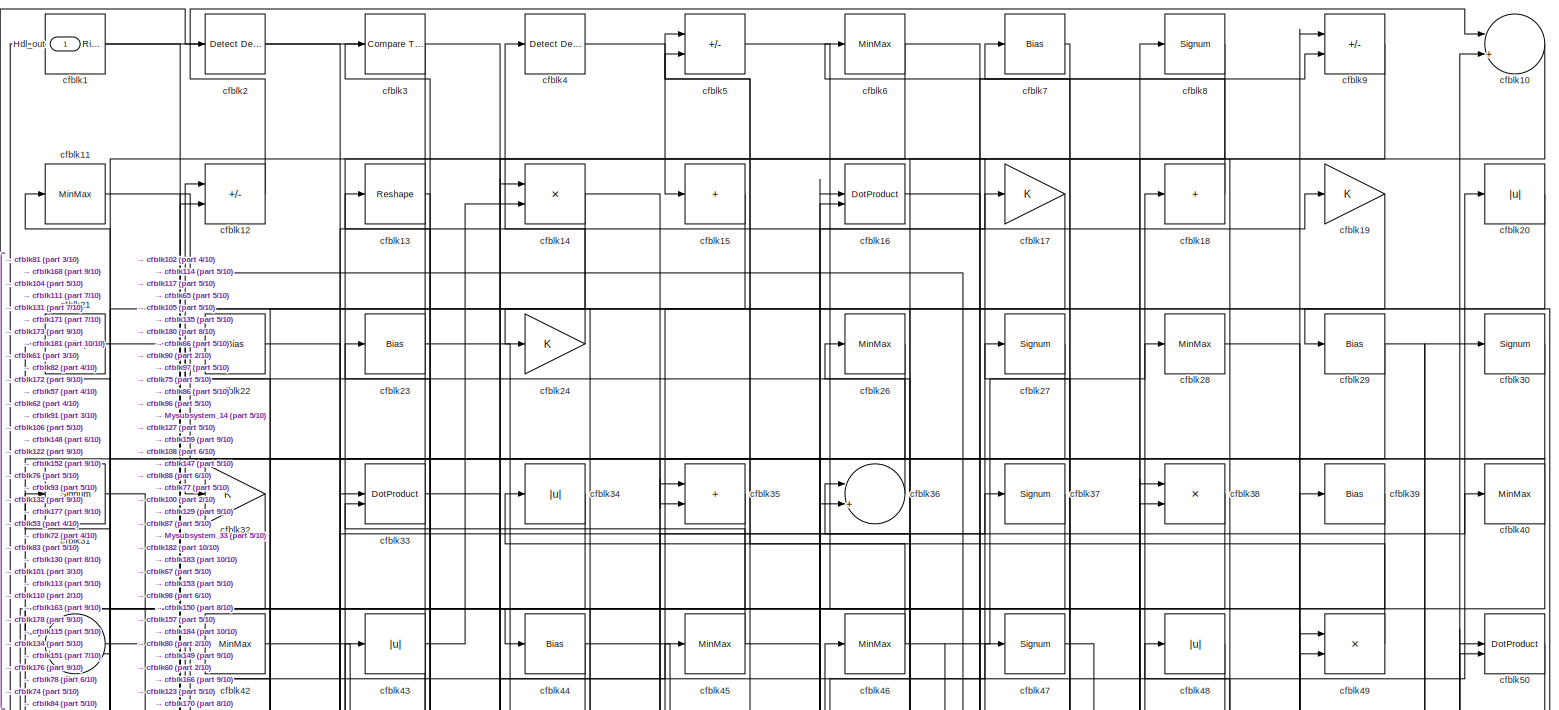
[diagram: root canvas - part 1/10, full width, top band]
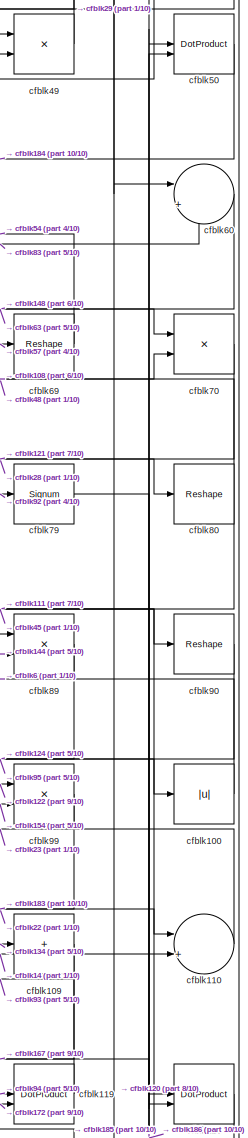
[diagram: root canvas - part 2/10, middle right region]
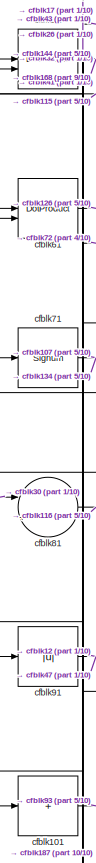
[diagram: root canvas - part 3/10, middle left region]
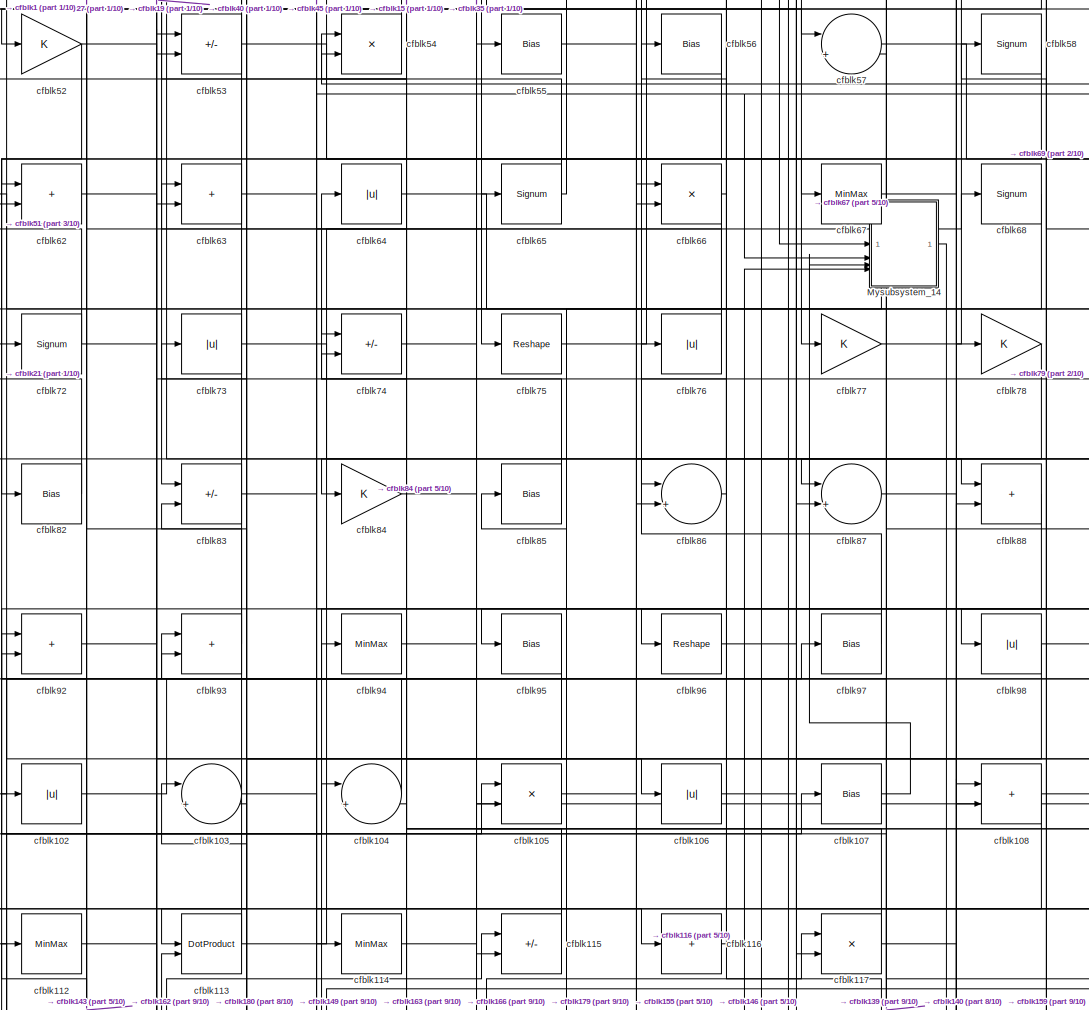
[diagram: root canvas - part 4/10, central region]
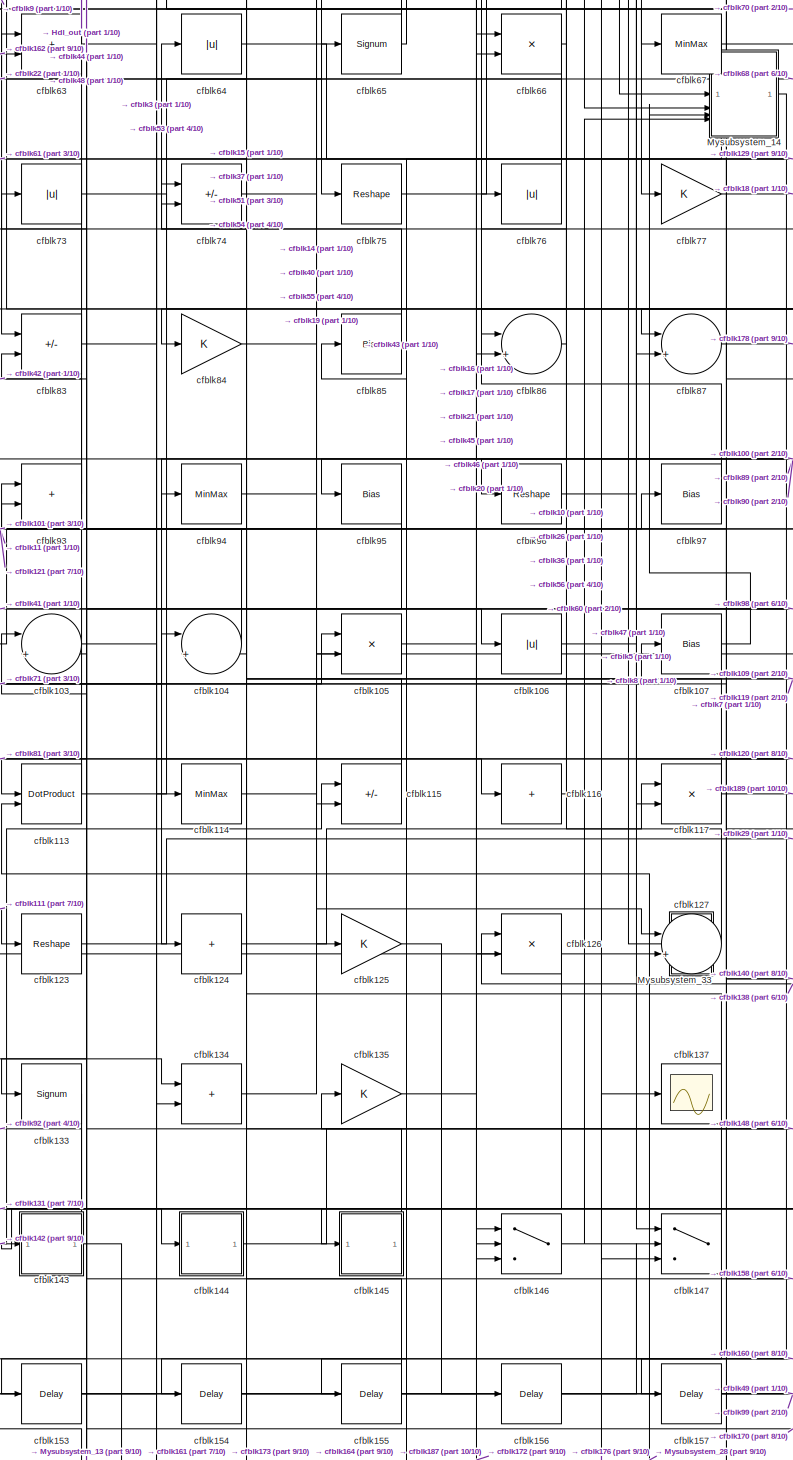
[diagram: root canvas - part 5/10, central region]
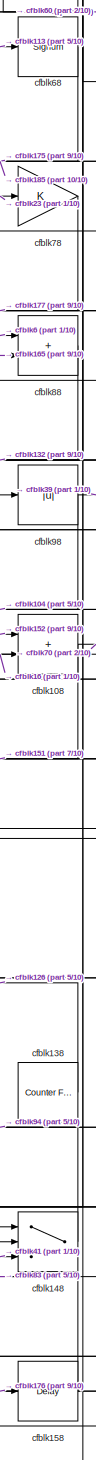
[diagram: root canvas - part 6/10, middle right region]
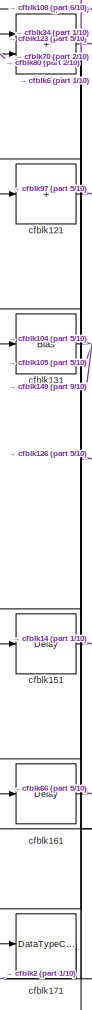
[diagram: root canvas - part 7/10, bottom left region]
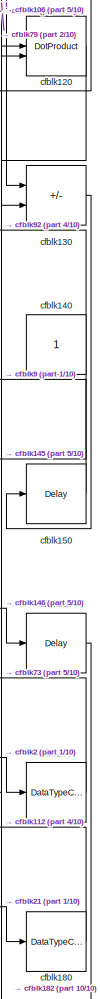
[diagram: root canvas - part 8/10, bottom right region]
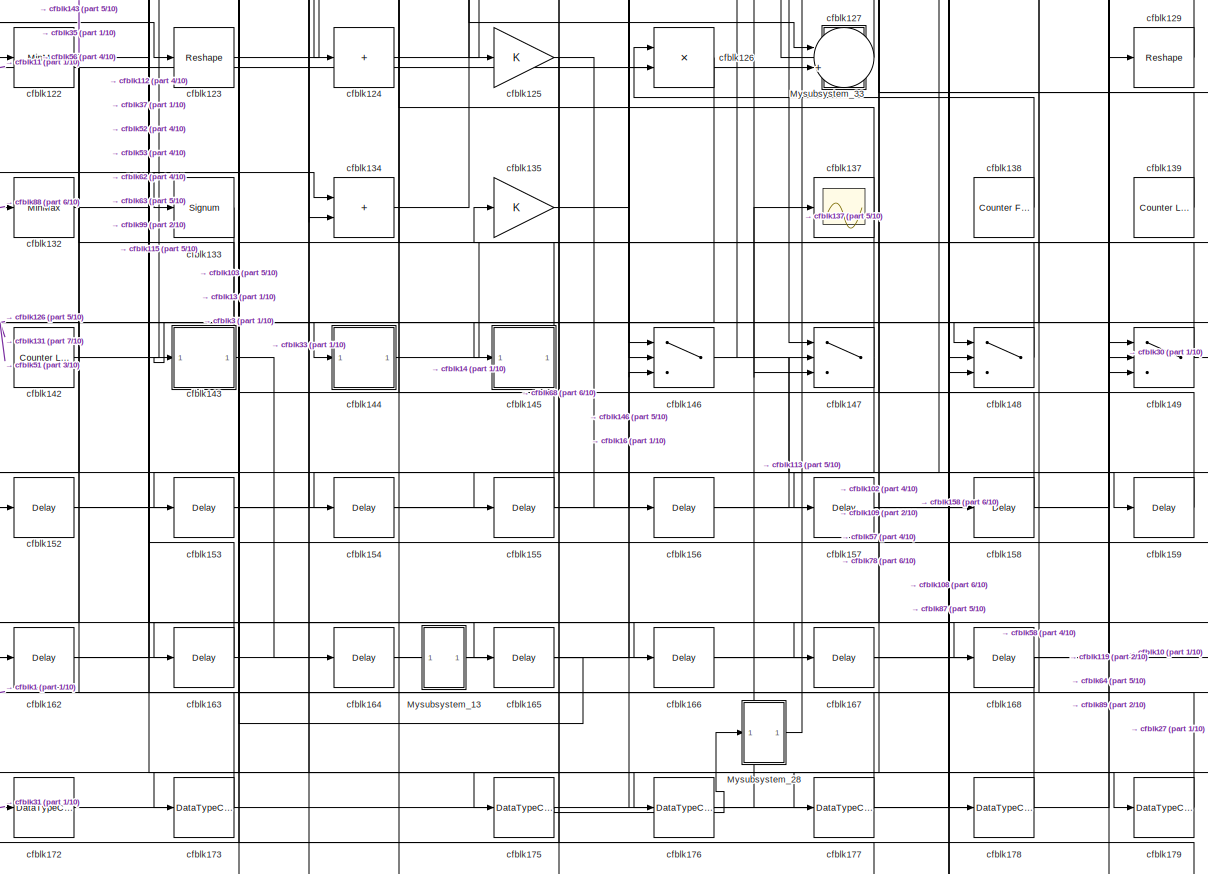
[diagram: root canvas - part 9/10, full width, bottom band]
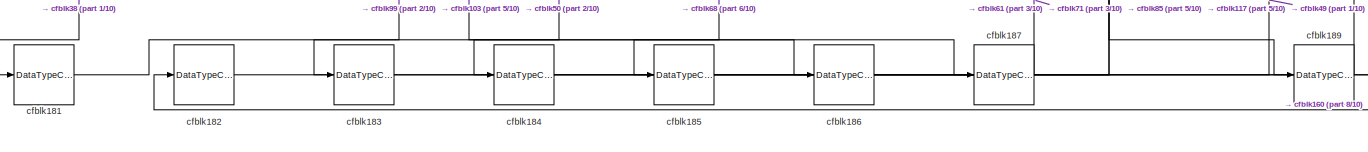
[diagram: root canvas - part 10/10, full width, bottom band]
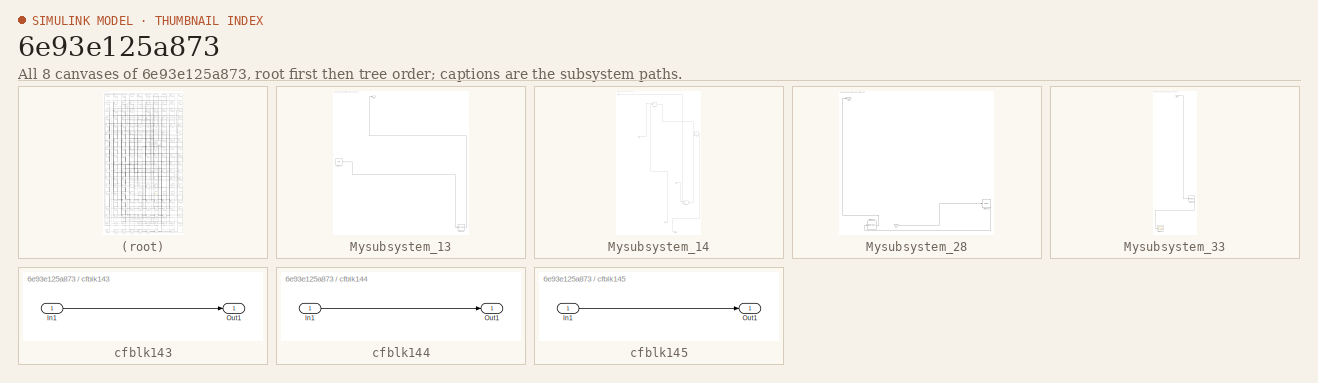
[diagram: thumbnail index - all 8 canvases of the model, root first then tree order]
MODEL slx_6e93e125a873
KIND model
CONFIG AbsTol = auto
CONFIG EnableMultiTasking = off
CONFIG FixedStep = auto
CONFIG MaxStep = auto
CONFIG MinStep = auto
CONFIG RelTol = 1e-3
CONFIG SampleTimeConstraint = Unconstrained
CONFIG SolverName = VariableStepAuto
CONFIG StartTime = 0.0
CONFIG StopTime = 10.0
BLOCK [Outport] Hdl_out
  OutDataTypeStr = uint8
BLOCK [SubSystem] Mysubsystem_13
  RTWFcnName = Mysubsystem_13
  RTWFcnNameOpts = User specified
  RTWFileNameOpts = Use function name
  RTWSystemCode = Reusable function
  TreatAsAtomicUnit = on
BLOCK [Outport] Mysubsystem_13/Out1
BLOCK [Ground] Mysubsystem_13/cfblk141
BLOCK [DataTypeConversion] Mysubsystem_13/cfblk188
  OutDataTypeStr = uint8
  RndMeth = Floor
  SaturateOnIntegerOverflow = off
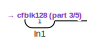
[diagram: Mysubsystem_14 - part 1/5, top left region]
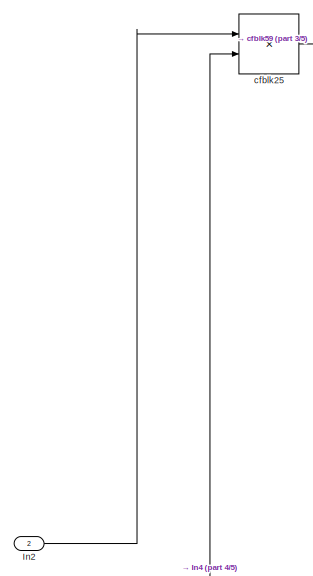
[diagram: Mysubsystem_14 - part 2/5, top center region]
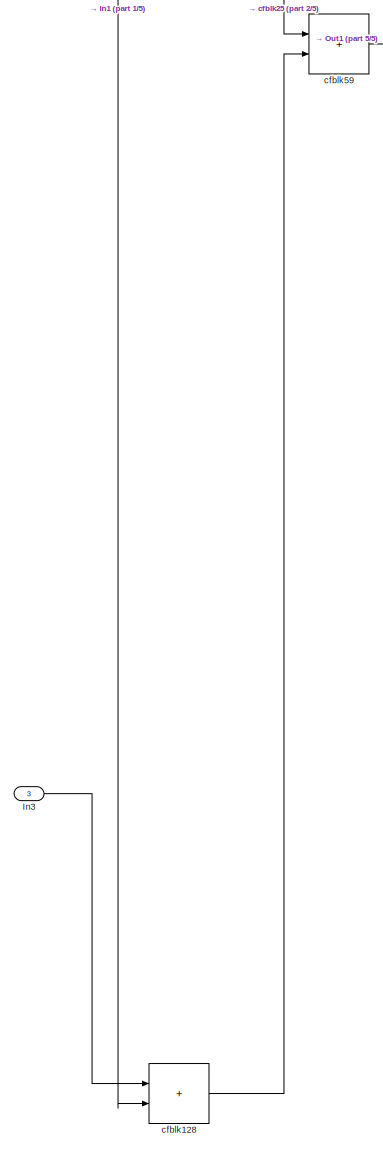
[diagram: Mysubsystem_14 - part 3/5, middle right region]
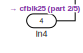
[diagram: Mysubsystem_14 - part 4/5, bottom center region]
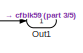
[diagram: Mysubsystem_14 - part 5/5, bottom right region]
BLOCK [SubSystem] Mysubsystem_14
  RTWFcnName = Mysubsystem_14
  RTWFcnNameOpts = User specified
  RTWFileNameOpts = Use function name
  RTWSystemCode = Reusable function
  TreatAsAtomicUnit = on
BLOCK [Inport] Mysubsystem_14/In1
BLOCK [Inport] Mysubsystem_14/In2
  Port = 2
BLOCK [Inport] Mysubsystem_14/In3
  Port = 3
BLOCK [Inport] Mysubsystem_14/In4
  Port = 4
BLOCK [Outport] Mysubsystem_14/Out1
BLOCK [Sum] Mysubsystem_14/cfblk128
  IconShape = rectangular
BLOCK [Product] Mysubsystem_14/cfblk25
  Inputs = */
  RndMeth = Zero
  SaturateOnIntegerOverflow = on
BLOCK [Sum] Mysubsystem_14/cfblk59
  IconShape = rectangular
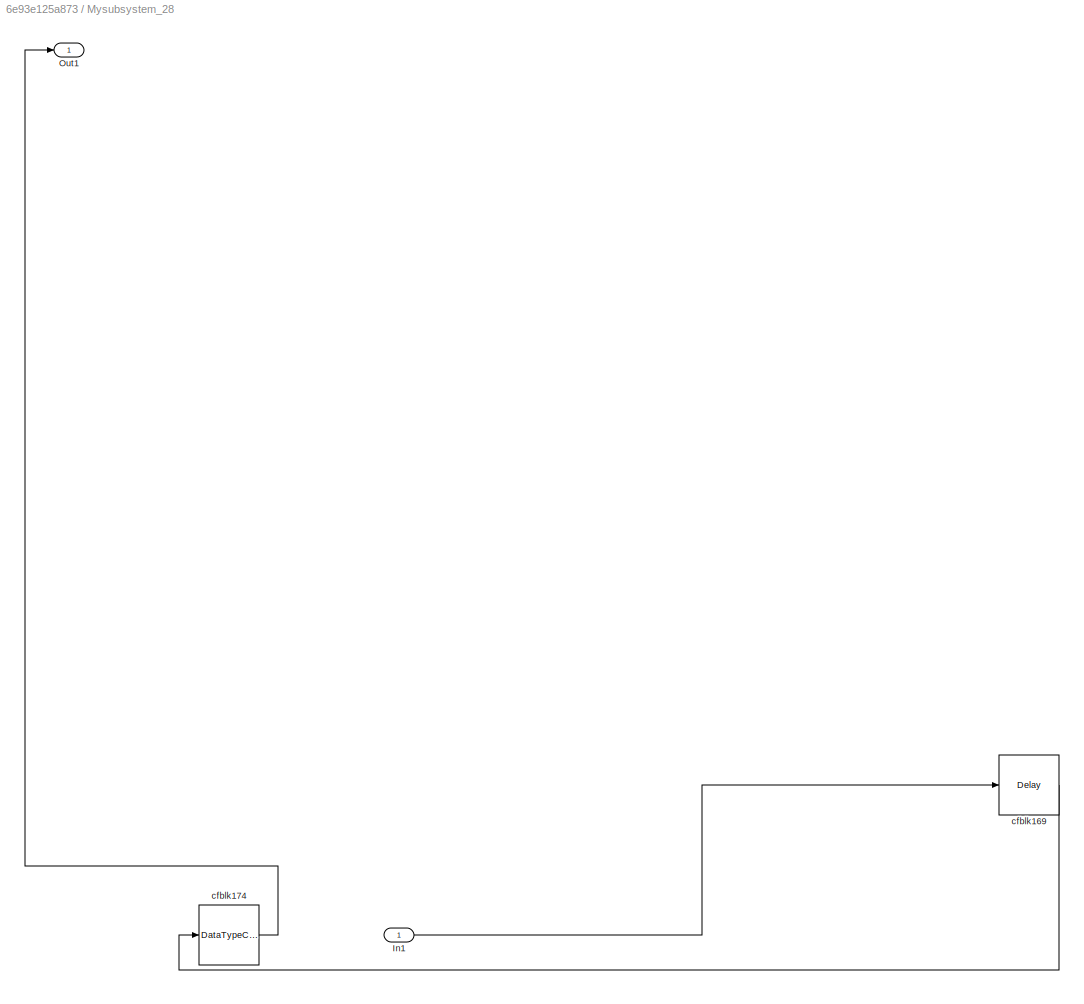
BLOCK [SubSystem] Mysubsystem_28
  RTWFcnName = Mysubsystem_28
  RTWFcnNameOpts = User specified
  RTWFileNameOpts = Use function name
  RTWSystemCode = Reusable function
  TreatAsAtomicUnit = on
BLOCK [Inport] Mysubsystem_28/In1
BLOCK [Outport] Mysubsystem_28/Out1
BLOCK [Delay] Mysubsystem_28/cfblk169
  InputPortMap = u0
  SampleTime = 1
BLOCK [DataTypeConversion] Mysubsystem_28/cfblk174
  OutDataTypeStr = uint8
  RndMeth = Floor
  SaturateOnIntegerOverflow = off
BLOCK [SubSystem] Mysubsystem_33
  RTWFcnName = Mysubsystem_33
  RTWFcnNameOpts = User specified
  RTWFileNameOpts = Use function name
  RTWSystemCode = Reusable function
  TreatAsAtomicUnit = on
BLOCK [Inport] Mysubsystem_33/In1
BLOCK [MinMax] Mysubsystem_33/cfblk118
BLOCK [Scope] Mysubsystem_33/cfblk136
  Floating = off
  NumInputPorts = 1
  ScopeSpecificationString = Simulink.scopes.TimeScopeBlockCfg('CurrentConfiguration', extmgr.ConfigurationSet(extmgr.Configuration('Core','General UI',true),extmgr.Configuration('Core','Source UI',true),extmgr.Configuration('Sources','WiredSimulink',true,'DataLoggingVariableName','ScopeData2','DataLoggingSaveFormat','Array','DataLoggingLimitDataPoints',true,'DataLoggingDecimation','1'),extmgr.Configuration('Visuals','Time Do...<+868ch>
BLOCK [Reference] cfblk1  REF=hdlsllib/Logic and Bit
Operations/Detect Rise
Positive
  SourceBlock = hdlsllib/Logic and Bit\nOperations/Detect Rise\nPositive
  SourceType = Detect Rise Positive
BLOCK [Sum] cfblk10
  Inputs = |++
  OutDataTypeStr = uint8
BLOCK [Abs] cfblk100
  OutDataTypeStr = uint8
  SaturateOnIntegerOverflow = off
BLOCK [Sum] cfblk101
  IconShape = rectangular
  Inputs = +
  OutDataTypeStr = uint8
BLOCK [Abs] cfblk102
  OutDataTypeStr = uint8
  SaturateOnIntegerOverflow = off
BLOCK [Sum] cfblk103
  Inputs = |++
  OutDataTypeStr = uint8
BLOCK [Sum] cfblk104
  Inputs = |++
  OutDataTypeStr = uint8
BLOCK [Product] cfblk105
  Inputs = */
  OutDataTypeStr = uint8
  RndMeth = Zero
  SaturateOnIntegerOverflow = on
BLOCK [Abs] cfblk106
  OutDataTypeStr = uint8
  SaturateOnIntegerOverflow = off
BLOCK [Bias] cfblk107
  Bias = 0.0
  SaturateOnIntegerOverflow = off
BLOCK [Sum] cfblk108
  IconShape = rectangular
  OutDataTypeStr = uint8
BLOCK [Sum] cfblk109
  IconShape = rectangular
  Inputs = +
  OutDataTypeStr = uint8
BLOCK [MinMax] cfblk11
  OutDataTypeStr = uint8
BLOCK [Sum] cfblk110
  Inputs = |++
  OutDataTypeStr = uint8
BLOCK [Sum] cfblk111
  IconShape = rectangular
  OutDataTypeStr = uint8
BLOCK [MinMax] cfblk112
  OutDataTypeStr = uint8
BLOCK [DotProduct] cfblk113
  OutDataTypeStr = uint8
BLOCK [MinMax] cfblk114
  OutDataTypeStr = uint8
BLOCK [Sum] cfblk115
  IconShape = rectangular
  Inputs = +-
  OutDataTypeStr = uint8
BLOCK [Sum] cfblk116
  IconShape = rectangular
  Inputs = +
  OutDataTypeStr = uint8
BLOCK [Product] cfblk117
  Inputs = */
  OutDataTypeStr = uint8
  RndMeth = Zero
  SaturateOnIntegerOverflow = on
BLOCK [DotProduct] cfblk119
  OutDataTypeStr = uint8
BLOCK [Sum] cfblk12
  IconShape = rectangular
  Inputs = +-
  OutDataTypeStr = uint8
BLOCK [DotProduct] cfblk120
  OutDataTypeStr = uint8
BLOCK [Sum] cfblk121
  IconShape = rectangular
  Inputs = +
  OutDataTypeStr = uint8
BLOCK [MinMax] cfblk122
  OutDataTypeStr = uint8
BLOCK [Reshape] cfblk123
BLOCK [Sum] cfblk124
  IconShape = rectangular
  Inputs = +
  OutDataTypeStr = uint8
BLOCK [Gain] cfblk125
  OutDataTypeStr = uint8
BLOCK [Product] cfblk126
  Inputs = */
  OutDataTypeStr = uint8
  RndMeth = Zero
  SaturateOnIntegerOverflow = on
BLOCK [Sum] cfblk127
  Inputs = |++
  OutDataTypeStr = uint8
BLOCK [Reshape] cfblk129
BLOCK [Reshape] cfblk13
BLOCK [Sum] cfblk130
  IconShape = rectangular
  Inputs = +-
  OutDataTypeStr = uint8
BLOCK [Bias] cfblk131
  Bias = 0.0
  SaturateOnIntegerOverflow = off
BLOCK [MinMax] cfblk132
  OutDataTypeStr = uint8
BLOCK [Signum] cfblk133
BLOCK [Sum] cfblk134
  IconShape = rectangular
  OutDataTypeStr = uint8
BLOCK [Gain] cfblk135
  OutDataTypeStr = uint8
BLOCK [Scope] cfblk137
  Floating = off
  NumInputPorts = 1
  ScopeSpecificationString = Simulink.scopes.TimeScopeBlockCfg('CurrentConfiguration', extmgr.ConfigurationSet(extmgr.Configuration('Core','General UI',true),extmgr.Configuration('Core','Source UI',true),extmgr.Configuration('Sources','WiredSimulink',true,'DataLoggingVariableName','ScopeData2','DataLoggingSaveFormat','Array','DataLoggingLimitDataPoints',true,'DataLoggingDecimation','1'),extmgr.Configuration('Visuals','Time Do...<+868ch>
BLOCK [Reference] cfblk138  REF=hdlsllib/Sources/Counter
Free-Running
  SourceBlock = hdlsllib/Sources/Counter\nFree-Running
  SourceType = Counter Free-Running
BLOCK [Reference] cfblk139  REF=hdlsllib/Sources/Counter
Limited
  SourceBlock = hdlsllib/Sources/Counter\nLimited
  SourceType = Counter Limited
BLOCK [Product] cfblk14
  Inputs = */
  OutDataTypeStr = uint8
  RndMeth = Zero
  SaturateOnIntegerOverflow = on
BLOCK [Constant] cfblk140
  OutDataTypeStr = uint8
  SampleTime = -1
BLOCK [Reference] cfblk142  REF=hdlsllib/Sources/Counter
Limited
  SourceBlock = hdlsllib/Sources/Counter\nLimited
  SourceType = Counter Limited
BLOCK [SubSystem] cfblk143
  LibrarySourceBlock = hdlsllib/Ports &\nSubsystems/Subsystem
BLOCK [Inport] cfblk143/In1
BLOCK [Outport] cfblk143/Out1
BLOCK [SubSystem] cfblk144
  LibrarySourceBlock = hdlsllib/Ports &\nSubsystems/Subsystem
BLOCK [Inport] cfblk144/In1
BLOCK [Outport] cfblk144/Out1
BLOCK [SubSystem] cfblk145
  LibrarySourceBlock = hdlsllib/Ports &\nSubsystems/Subsystem
BLOCK [Inport] cfblk145/In1
BLOCK [Outport] cfblk145/Out1
BLOCK [Switch] cfblk146
  InputSameDT = off
  OutDataTypeStr = uint8
  SaturateOnIntegerOverflow = off
BLOCK [Switch] cfblk147
  InputSameDT = off
  OutDataTypeStr = uint8
  SaturateOnIntegerOverflow = off
BLOCK [Switch] cfblk148
  InputSameDT = off
  OutDataTypeStr = uint8
  SaturateOnIntegerOverflow = off
BLOCK [Switch] cfblk149
  InputSameDT = off
  OutDataTypeStr = uint8
  SaturateOnIntegerOverflow = off
BLOCK [Sum] cfblk15
  IconShape = rectangular
  Inputs = +
  OutDataTypeStr = uint8
BLOCK [Delay] cfblk150
  InputPortMap = u0
  SampleTime = 1
BLOCK [Delay] cfblk151
  InputPortMap = u0
  SampleTime = 1
BLOCK [Delay] cfblk152
  InputPortMap = u0
  SampleTime = 1
BLOCK [Delay] cfblk153
  InputPortMap = u0
  SampleTime = 1
BLOCK [Delay] cfblk154
  InputPortMap = u0
  SampleTime = 1
BLOCK [Delay] cfblk155
  InputPortMap = u0
  SampleTime = 1
BLOCK [Delay] cfblk156
  InputPortMap = u0
  SampleTime = 1
BLOCK [Delay] cfblk157
  InputPortMap = u0
  SampleTime = 1
BLOCK [Delay] cfblk158
  InputPortMap = u0
  SampleTime = 1
BLOCK [Delay] cfblk159
  InputPortMap = u0
  SampleTime = 1
BLOCK [DotProduct] cfblk16
  OutDataTypeStr = uint8
BLOCK [Delay] cfblk160
  InputPortMap = u0
  SampleTime = 1
BLOCK [Delay] cfblk161
  InputPortMap = u0
  SampleTime = 1
BLOCK [Delay] cfblk162
  InputPortMap = u0
  SampleTime = 1
BLOCK [Delay] cfblk163
  InputPortMap = u0
  SampleTime = 1
BLOCK [Delay] cfblk164
  InputPortMap = u0
  SampleTime = 1
BLOCK [Delay] cfblk165
  InputPortMap = u0
  SampleTime = 1
BLOCK [Delay] cfblk166
  InputPortMap = u0
  SampleTime = 1
BLOCK [Delay] cfblk167
  InputPortMap = u0
  SampleTime = 1
BLOCK [Delay] cfblk168
  InputPortMap = u0
  SampleTime = 1
BLOCK [Gain] cfblk17
  OutDataTypeStr = uint8
BLOCK [DataTypeConversion] cfblk170
  OutDataTypeStr = uint8
  RndMeth = Floor
  SaturateOnIntegerOverflow = off
BLOCK [DataTypeConversion] cfblk171
  OutDataTypeStr = uint8
  RndMeth = Floor
  SaturateOnIntegerOverflow = off
BLOCK [DataTypeConversion] cfblk172
  OutDataTypeStr = uint8
  RndMeth = Floor
  SaturateOnIntegerOverflow = off
BLOCK [DataTypeConversion] cfblk173
  OutDataTypeStr = uint8
  RndMeth = Floor
  SaturateOnIntegerOverflow = off
BLOCK [DataTypeConversion] cfblk175
  OutDataTypeStr = uint8
  RndMeth = Floor
  SaturateOnIntegerOverflow = off
BLOCK [DataTypeConversion] cfblk176
  OutDataTypeStr = uint8
  RndMeth = Floor
  SaturateOnIntegerOverflow = off
BLOCK [DataTypeConversion] cfblk177
  OutDataTypeStr = uint8
  RndMeth = Floor
  SaturateOnIntegerOverflow = off
BLOCK [DataTypeConversion] cfblk178
  OutDataTypeStr = uint8
  RndMeth = Floor
  SaturateOnIntegerOverflow = off
BLOCK [DataTypeConversion] cfblk179
  OutDataTypeStr = uint8
  RndMeth = Floor
  SaturateOnIntegerOverflow = off
BLOCK [Sum] cfblk18
  IconShape = rectangular
  Inputs = +
  OutDataTypeStr = uint8
BLOCK [DataTypeConversion] cfblk180
  OutDataTypeStr = uint8
  RndMeth = Floor
  SaturateOnIntegerOverflow = off
BLOCK [DataTypeConversion] cfblk181
  OutDataTypeStr = uint8
  RndMeth = Floor
  SaturateOnIntegerOverflow = off
BLOCK [DataTypeConversion] cfblk182
  OutDataTypeStr = uint8
  RndMeth = Floor
  SaturateOnIntegerOverflow = off
BLOCK [DataTypeConversion] cfblk183
  OutDataTypeStr = uint8
  RndMeth = Floor
  SaturateOnIntegerOverflow = off
BLOCK [DataTypeConversion] cfblk184
  OutDataTypeStr = uint8
  RndMeth = Floor
  SaturateOnIntegerOverflow = off
BLOCK [DataTypeConversion] cfblk185
  OutDataTypeStr = uint8
  RndMeth = Floor
  SaturateOnIntegerOverflow = off
BLOCK [DataTypeConversion] cfblk186
  OutDataTypeStr = uint8
  RndMeth = Floor
  SaturateOnIntegerOverflow = off
BLOCK [DataTypeConversion] cfblk187
  OutDataTypeStr = uint8
  RndMeth = Floor
  SaturateOnIntegerOverflow = off
BLOCK [DataTypeConversion] cfblk189
  OutDataTypeStr = uint8
  RndMeth = Floor
  SaturateOnIntegerOverflow = off
BLOCK [Gain] cfblk19
  OutDataTypeStr = uint8
BLOCK [Reference] cfblk2  REF=simulink/Logic and Bit
Operations/Detect
Decrease
  LibrarySourceBlock = hdlsllib/Logic and Bit\nOperations/Detect\nDecrease
  SourceBlock = simulink/Logic and Bit\nOperations/Detect\nDecrease
  SourceType = Detect Decrease
BLOCK [Abs] cfblk20
  OutDataTypeStr = uint8
  SaturateOnIntegerOverflow = off
BLOCK [Reshape] cfblk21
BLOCK [Bias] cfblk22
  Bias = 0.0
  SaturateOnIntegerOverflow = off
BLOCK [Bias] cfblk23
  Bias = 0.0
  SaturateOnIntegerOverflow = off
BLOCK [Gain] cfblk24
  OutDataTypeStr = uint8
BLOCK [MinMax] cfblk26
  OutDataTypeStr = uint8
BLOCK [Signum] cfblk27
BLOCK [MinMax] cfblk28
  OutDataTypeStr = uint8
BLOCK [Bias] cfblk29
  Bias = 0.0
  SaturateOnIntegerOverflow = off
BLOCK [Reference] cfblk3  REF=hdlsllib/Logic and Bit
Operations/Compare
To Constant
  SourceBlock = hdlsllib/Logic and Bit\nOperations/Compare\nTo Constant
  SourceType = Compare To Constant
BLOCK [Signum] cfblk30
BLOCK [Signum] cfblk31
BLOCK [Gain] cfblk32
  OutDataTypeStr = uint8
BLOCK [DotProduct] cfblk33
  OutDataTypeStr = uint8
BLOCK [Abs] cfblk34
  OutDataTypeStr = uint8
  SaturateOnIntegerOverflow = off
BLOCK [Sum] cfblk35
  IconShape = rectangular
  OutDataTypeStr = uint8
BLOCK [Sum] cfblk36
  Inputs = |++
  OutDataTypeStr = uint8
BLOCK [Signum] cfblk37
BLOCK [Product] cfblk38
  Inputs = */
  OutDataTypeStr = uint8
  RndMeth = Zero
  SaturateOnIntegerOverflow = on
BLOCK [Bias] cfblk39
  Bias = 0.0
  SaturateOnIntegerOverflow = off
BLOCK [Reference] cfblk4  REF=simulink/Logic and Bit
Operations/Detect
Decrease
  LibrarySourceBlock = hdlsllib/Logic and Bit\nOperations/Detect\nDecrease
  SourceBlock = simulink/Logic and Bit\nOperations/Detect\nDecrease
  SourceType = Detect Decrease
BLOCK [MinMax] cfblk40
  OutDataTypeStr = uint8
BLOCK [Sum] cfblk41
  Inputs = |++
  OutDataTypeStr = uint8
BLOCK [MinMax] cfblk42
  OutDataTypeStr = uint8
BLOCK [Abs] cfblk43
  OutDataTypeStr = uint8
  SaturateOnIntegerOverflow = off
BLOCK [Bias] cfblk44
  Bias = 0.0
  SaturateOnIntegerOverflow = off
BLOCK [MinMax] cfblk45
  OutDataTypeStr = uint8
BLOCK [MinMax] cfblk46
  OutDataTypeStr = uint8
BLOCK [Signum] cfblk47
BLOCK [Abs] cfblk48
  OutDataTypeStr = uint8
  SaturateOnIntegerOverflow = off
BLOCK [Product] cfblk49
  Inputs = */
  OutDataTypeStr = uint8
  RndMeth = Zero
  SaturateOnIntegerOverflow = on
BLOCK [Sum] cfblk5
  IconShape = rectangular
  Inputs = +-
  OutDataTypeStr = uint8
BLOCK [DotProduct] cfblk50
  OutDataTypeStr = uint8
BLOCK [DotProduct] cfblk51
  OutDataTypeStr = uint8
BLOCK [Gain] cfblk52
  OutDataTypeStr = uint8
BLOCK [Sum] cfblk53
  IconShape = rectangular
  Inputs = +-
  OutDataTypeStr = uint8
BLOCK [Product] cfblk54
  Inputs = */
  OutDataTypeStr = uint8
  RndMeth = Zero
  SaturateOnIntegerOverflow = on
BLOCK [Bias] cfblk55
  Bias = 0.0
  SaturateOnIntegerOverflow = off
BLOCK [Bias] cfblk56
  Bias = 0.0
  SaturateOnIntegerOverflow = off
BLOCK [Sum] cfblk57
  Inputs = |++
  OutDataTypeStr = uint8
BLOCK [Signum] cfblk58
BLOCK [MinMax] cfblk6
  OutDataTypeStr = uint8
BLOCK [Sum] cfblk60
  Inputs = |++
  OutDataTypeStr = uint8
BLOCK [DotProduct] cfblk61
  OutDataTypeStr = uint8
BLOCK [Sum] cfblk62
  IconShape = rectangular
  OutDataTypeStr = uint8
BLOCK [Sum] cfblk63
  IconShape = rectangular
  OutDataTypeStr = uint8
BLOCK [Abs] cfblk64
  OutDataTypeStr = uint8
  SaturateOnIntegerOverflow = off
BLOCK [Signum] cfblk65
BLOCK [Product] cfblk66
  Inputs = */
  OutDataTypeStr = uint8
  RndMeth = Zero
  SaturateOnIntegerOverflow = on
BLOCK [MinMax] cfblk67
  OutDataTypeStr = uint8
BLOCK [Signum] cfblk68
BLOCK [Reshape] cfblk69
BLOCK [Bias] cfblk7
  Bias = 0.0
  SaturateOnIntegerOverflow = off
BLOCK [Product] cfblk70
  Inputs = */
  OutDataTypeStr = uint8
  RndMeth = Zero
  SaturateOnIntegerOverflow = on
BLOCK [Signum] cfblk71
BLOCK [Signum] cfblk72
BLOCK [Abs] cfblk73
  OutDataTypeStr = uint8
  SaturateOnIntegerOverflow = off
BLOCK [Sum] cfblk74
  IconShape = rectangular
  Inputs = +-
  OutDataTypeStr = uint8
BLOCK [Reshape] cfblk75
BLOCK [Abs] cfblk76
  OutDataTypeStr = uint8
  SaturateOnIntegerOverflow = off
BLOCK [Gain] cfblk77
  OutDataTypeStr = uint8
BLOCK [Gain] cfblk78
  OutDataTypeStr = uint8
BLOCK [Signum] cfblk79
BLOCK [Signum] cfblk8
BLOCK [Reshape] cfblk80
BLOCK [Sum] cfblk81
  Inputs = |++
  OutDataTypeStr = uint8
BLOCK [Bias] cfblk82
  Bias = 0.0
  SaturateOnIntegerOverflow = off
BLOCK [Sum] cfblk83
  IconShape = rectangular
  Inputs = +-
  OutDataTypeStr = uint8
BLOCK [Gain] cfblk84
  OutDataTypeStr = uint8
BLOCK [Bias] cfblk85
  Bias = 0.0
  SaturateOnIntegerOverflow = off
BLOCK [Sum] cfblk86
  Inputs = |++
  OutDataTypeStr = uint8
BLOCK [Sum] cfblk87
  Inputs = |++
  OutDataTypeStr = uint8
BLOCK [Sum] cfblk88
  IconShape = rectangular
  OutDataTypeStr = uint8
BLOCK [Product] cfblk89
  Inputs = */
  OutDataTypeStr = uint8
  RndMeth = Zero
  SaturateOnIntegerOverflow = on
BLOCK [Sum] cfblk9
  IconShape = rectangular
  Inputs = +-
  OutDataTypeStr = uint8
BLOCK [Reshape] cfblk90
BLOCK [Abs] cfblk91
  OutDataTypeStr = uint8
  SaturateOnIntegerOverflow = off
BLOCK [Sum] cfblk92
  IconShape = rectangular
  OutDataTypeStr = uint8
BLOCK [Sum] cfblk93
  IconShape = rectangular
  OutDataTypeStr = uint8
BLOCK [MinMax] cfblk94
  OutDataTypeStr = uint8
BLOCK [Bias] cfblk95
  Bias = 0.0
  SaturateOnIntegerOverflow = off
BLOCK [Reshape] cfblk96
BLOCK [Bias] cfblk97
  Bias = 0.0
  SaturateOnIntegerOverflow = off
BLOCK [Abs] cfblk98
  OutDataTypeStr = uint8
  SaturateOnIntegerOverflow = off
BLOCK [Product] cfblk99
  Inputs = */
  OutDataTypeStr = uint8
  RndMeth = Zero
  SaturateOnIntegerOverflow = on
LINE Mysubsystem_13/cfblk141:1 -> Mysubsystem_13/cfblk188:1
LINE Mysubsystem_13/cfblk188:1 -> Mysubsystem_13/Out1:1
LINE Mysubsystem_13:1 -> cfblk103:1
LINE Mysubsystem_14/In1:1 -> Mysubsystem_14/cfblk128:2
LINE Mysubsystem_14/In2:1 -> Mysubsystem_14/cfblk25:1
LINE Mysubsystem_14/In3:1 -> Mysubsystem_14/cfblk128:1
LINE Mysubsystem_14/In4:1 -> Mysubsystem_14/cfblk25:2
LINE Mysubsystem_14/cfblk128:1 -> Mysubsystem_14/cfblk59:2
LINE Mysubsystem_14/cfblk25:1 -> Mysubsystem_14/cfblk59:1
LINE Mysubsystem_14/cfblk59:1 -> Mysubsystem_14/Out1:1
LINE Mysubsystem_14:1 -> cfblk157:1
LINE Mysubsystem_28/In1:1 -> Mysubsystem_28/cfblk169:1
LINE Mysubsystem_28/cfblk169:1 -> Mysubsystem_28/cfblk174:1
LINE Mysubsystem_28/cfblk174:1 -> Mysubsystem_28/Out1:1
LINE Mysubsystem_28:1 -> cfblk113:2
LINE Mysubsystem_33/In1:1 -> Mysubsystem_33/cfblk118:1
LINE Mysubsystem_33/cfblk118:1 -> Mysubsystem_33/cfblk136:1
LINE cfblk100:1 -> cfblk6:1
LINE cfblk101:1 -> cfblk93:1
LINE cfblk102:1 -> cfblk35:1
LINE cfblk103:1 -> cfblk187:1
LINE cfblk104:1 -> cfblk11:1
LINE cfblk105:1 -> cfblk16:1
LINE cfblk106:1 -> cfblk120:2
LINE cfblk107:1 -> Mysubsystem_14:3
NET cfblk108:1 -> cfblk151:1, cfblk70:2
LINE cfblk109:1 -> cfblk167:1
LINE cfblk10:1 -> cfblk96:1
LINE cfblk110:1 -> cfblk23:1
LINE cfblk111:1 -> cfblk123:1
LINE cfblk112:1 -> cfblk179:1
NET cfblk113:1 -> Hdl_out:1, cfblk68:1
LINE cfblk114:1 -> cfblk40:1
LINE cfblk115:1 -> cfblk51:1
LINE cfblk116:1 -> cfblk56:1
NET cfblk117:1 -> cfblk189:1, cfblk63:1
LINE cfblk119:1 -> cfblk93:2
NET cfblk11:1 -> Mysubsystem_14:1, cfblk127:2, cfblk159:1
LINE cfblk120:1 -> cfblk130:2
LINE cfblk121:1 -> cfblk97:1
LINE cfblk122:1 -> cfblk99:1
LINE cfblk123:1 -> cfblk29:1
LINE cfblk124:1 -> cfblk117:1
NET cfblk125:1 -> cfblk155:1, cfblk156:1
NET cfblk126:1 -> cfblk161:1, cfblk173:1
LINE cfblk127:1 -> cfblk76:1
LINE cfblk129:1 -> cfblk27:1
LINE cfblk12:1 -> cfblk10:1
LINE cfblk130:1 -> cfblk150:1
NET cfblk131:1 -> cfblk104:1, cfblk105:1, cfblk149:3
NET cfblk132:1 -> cfblk165:1, cfblk37:1
LINE cfblk133:1 -> cfblk143:1
LINE cfblk134:1 -> cfblk109:1
LINE cfblk135:1 -> cfblk17:1
LINE cfblk138:1 -> cfblk126:1
LINE cfblk139:1 -> cfblk102:1
LINE cfblk13:1 -> cfblk163:1
NET cfblk140:1 -> cfblk145:1, cfblk92:1
LINE cfblk142:1 -> cfblk115:1
LINE cfblk143/In1:1 -> cfblk143/Out1:1
NET cfblk143:1 -> cfblk164:1, cfblk92:2
LINE cfblk144/In1:1 -> cfblk144/Out1:1
LINE cfblk144:1 -> cfblk89:2
LINE cfblk145/In1:1 -> cfblk145/Out1:1
LINE cfblk145:1 -> cfblk135:1
NET cfblk146:1 -> Mysubsystem_14:4, cfblk160:1
NET cfblk147:1 -> cfblk154:1, cfblk74:2
LINE cfblk148:1 -> cfblk94:1
NET cfblk149:1 -> cfblk30:1, cfblk3:1
NET cfblk14:1 -> cfblk110:2, cfblk122:1, cfblk127:1
LINE cfblk150:1 -> cfblk9:1
LINE cfblk151:1 -> cfblk14:1
LINE cfblk152:1 -> cfblk108:1
LINE cfblk153:1 -> cfblk36:2
LINE cfblk154:1 -> cfblk99:2
LINE cfblk155:1 -> cfblk54:2
LINE cfblk156:1 -> cfblk147:2
LINE cfblk157:1 -> cfblk49:1
LINE cfblk158:1 -> cfblk83:2
LINE cfblk159:1 -> cfblk57:2
NET cfblk15:1 -> cfblk44:1, cfblk62:2, cfblk84:1
LINE cfblk160:1 -> cfblk182:1
LINE cfblk161:1 -> cfblk66:2
LINE cfblk162:1 -> cfblk63:2
LINE cfblk163:1 -> cfblk53:1
LINE cfblk164:1 -> cfblk149:1
LINE cfblk165:1 -> cfblk88:2
LINE cfblk166:1 -> cfblk10:2
LINE cfblk167:1 -> cfblk89:1
LINE cfblk168:1 -> cfblk1:1
LINE cfblk16:1 -> cfblk108:2
LINE cfblk170:1 -> cfblk73:1
LINE cfblk171:1 -> cfblk2:1
NET cfblk172:1 -> cfblk119:2, cfblk146:3, cfblk16:2
LINE cfblk173:1 -> cfblk31:1
LINE cfblk175:1 -> Mysubsystem_28:1
NET cfblk176:1 -> cfblk137:1, cfblk158:1
LINE cfblk177:1 -> cfblk33:1
LINE cfblk178:1 -> cfblk33:2
LINE cfblk179:1 -> cfblk58:1
NET cfblk17:1 -> cfblk86:1, cfblk91:1
LINE cfblk180:1 -> cfblk112:1
LINE cfblk181:1 -> cfblk186:1
LINE cfblk182:1 -> cfblk38:1
LINE cfblk183:1 -> cfblk38:2
LINE cfblk184:1 -> cfblk49:2
LINE cfblk185:1 -> cfblk50:1
LINE cfblk186:1 -> cfblk50:2
NET cfblk187:1 -> cfblk61:1, cfblk71:1, cfblk85:1
LINE cfblk189:1 -> cfblk103:2
LINE cfblk18:1 -> cfblk7:1
LINE cfblk19:1 -> cfblk75:1
LINE cfblk1:1 -> cfblk57:1
LINE cfblk20:1 -> cfblk24:1
NET cfblk21:1 -> cfblk180:1, cfblk66:1
LINE cfblk22:1 -> cfblk110:1
LINE cfblk23:1 -> cfblk78:1
LINE cfblk24:1 -> cfblk4:1
LINE cfblk26:1 -> cfblk81:2
LINE cfblk27:1 -> cfblk62:1
LINE cfblk28:1 -> cfblk80:1
NET cfblk29:1 -> cfblk35:2, cfblk60:1
LINE cfblk2:1 -> cfblk170:1
LINE cfblk30:1 -> cfblk81:1
LINE cfblk31:1 -> cfblk172:1
NET cfblk32:1 -> cfblk111:1, cfblk61:2
LINE cfblk33:1 -> cfblk176:1
LINE cfblk34:1 -> cfblk131:1
LINE cfblk35:1 -> cfblk152:1
LINE cfblk36:1 -> cfblk12:1
LINE cfblk37:1 -> cfblk74:1
LINE cfblk38:1 -> cfblk181:1
LINE cfblk39:1 -> cfblk41:1
LINE cfblk3:1 -> cfblk115:2
NET cfblk40:1 -> cfblk32:1, cfblk53:2
NET cfblk41:1 -> cfblk106:1, cfblk148:3
LINE cfblk42:1 -> cfblk130:1
NET cfblk43:1 -> cfblk101:1, cfblk14:2
NET cfblk44:1 -> cfblk113:1, cfblk117:2
NET cfblk45:1 -> cfblk13:1, cfblk86:2, cfblk90:1
NET cfblk46:1 -> cfblk147:3, cfblk28:1, cfblk5:2
LINE cfblk47:1 -> Mysubsystem_33:1
LINE cfblk48:1 -> cfblk153:1
LINE cfblk49:1 -> cfblk34:1
LINE cfblk4:1 -> cfblk15:1
LINE cfblk50:1 -> cfblk184:1
NET cfblk51:1 -> cfblk144:1, cfblk168:1
NET cfblk52:1 -> cfblk149:2, cfblk82:1
NET cfblk53:1 -> cfblk146:1, cfblk45:1
LINE cfblk54:1 -> cfblk52:1
LINE cfblk55:1 -> cfblk67:1
LINE cfblk56:1 -> cfblk162:1
LINE cfblk57:1 -> cfblk69:1
LINE cfblk58:1 -> cfblk72:1
LINE cfblk5:1 -> cfblk147:1
LINE cfblk60:1 -> cfblk148:1
NET cfblk61:1 -> cfblk126:2, cfblk41:2
LINE cfblk62:1 -> cfblk166:1
NET cfblk63:1 -> cfblk100:1, cfblk70:1
LINE cfblk64:1 -> cfblk129:1
NET cfblk65:1 -> cfblk43:1, cfblk5:1
NET cfblk66:1 -> cfblk146:2, cfblk36:1
NET cfblk67:1 -> cfblk105:2, cfblk8:1
NET cfblk68:1 -> cfblk175:1, cfblk185:1
LINE cfblk69:1 -> cfblk54:1
NET cfblk6:1 -> cfblk171:1, cfblk88:1
LINE cfblk70:1 -> cfblk121:1
NET cfblk71:1 -> cfblk107:1, cfblk134:1
NET cfblk72:1 -> cfblk19:1, cfblk51:2
NET cfblk73:1 -> cfblk114:1, cfblk87:2
LINE cfblk74:1 -> cfblk125:1
LINE cfblk75:1 -> cfblk20:1
LINE cfblk76:1 -> cfblk22:1
LINE cfblk77:1 -> cfblk18:1
LINE cfblk78:1 -> cfblk177:1
LINE cfblk79:1 -> cfblk120:1
LINE cfblk7:1 -> cfblk87:1
NET cfblk80:1 -> cfblk111:2, cfblk48:1
LINE cfblk81:1 -> cfblk116:1
LINE cfblk82:1 -> cfblk21:1
NET cfblk83:1 -> Mysubsystem_14:2, cfblk60:2, cfblk65:1
LINE cfblk84:1 -> cfblk55:1
LINE cfblk85:1 -> cfblk64:1
LINE cfblk86:1 -> cfblk26:1
LINE cfblk87:1 -> cfblk178:1
LINE cfblk88:1 -> cfblk132:1
LINE cfblk89:1 -> cfblk124:1
NET cfblk8:1 -> cfblk134:2, cfblk77:1
LINE cfblk90:1 -> cfblk95:1
NET cfblk91:1 -> cfblk12:2, cfblk47:1
LINE cfblk92:1 -> cfblk79:1
LINE cfblk93:1 -> cfblk42:1
LINE cfblk94:1 -> cfblk119:1
LINE cfblk95:1 -> cfblk133:1
LINE cfblk96:1 -> cfblk9:2
LINE cfblk97:1 -> cfblk46:1
NET cfblk98:1 -> cfblk104:2, cfblk39:1
LINE cfblk99:1 -> cfblk183:1
NET cfblk9:1 -> cfblk148:2, cfblk83:1, cfblk98:1
note: NET lines group one-source signal fan-out (src -> all destinations, sorted); 1:1 wires keep LINE
